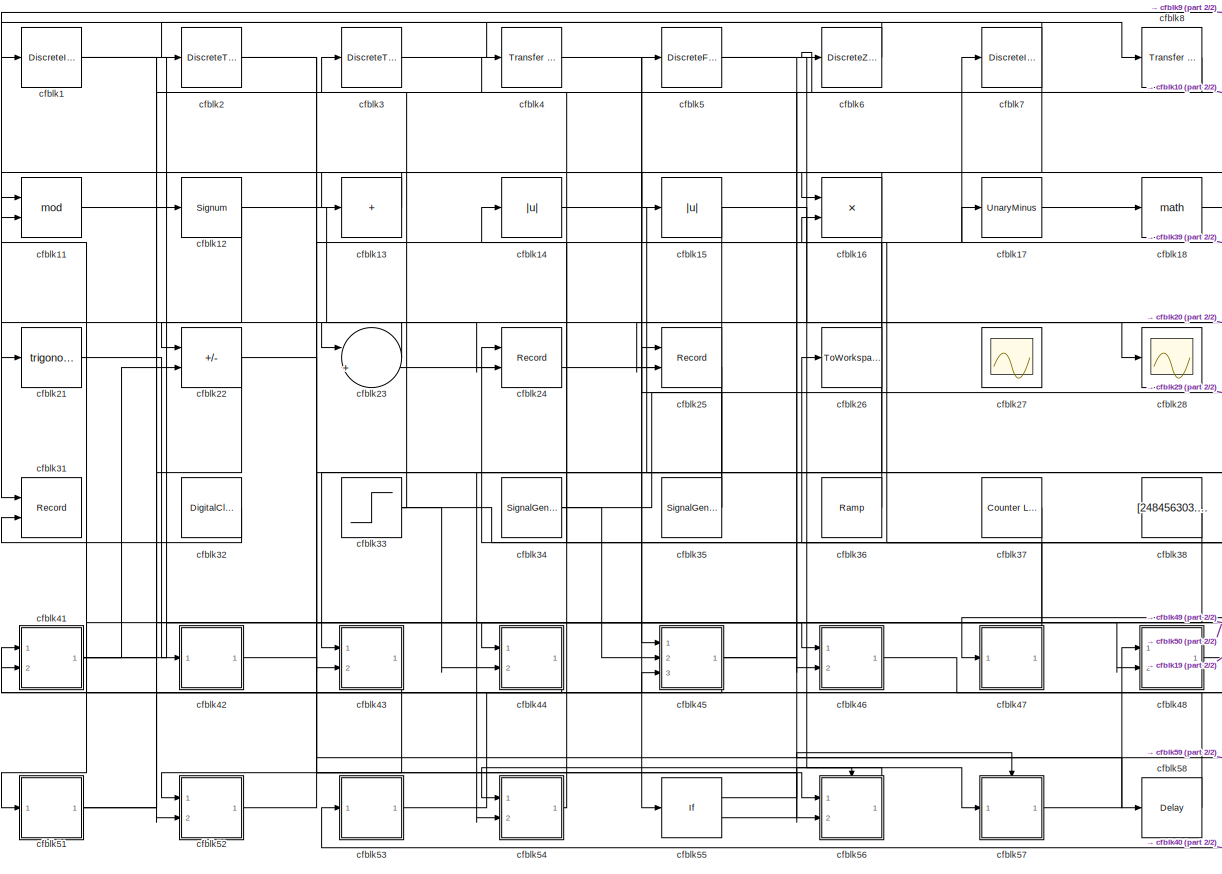
[diagram: root canvas - part 1/2, most of the canvas]
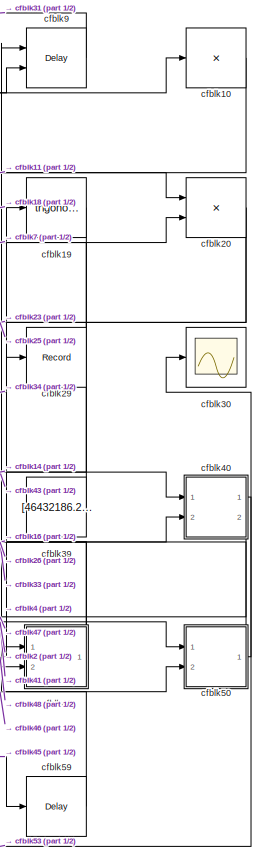
[diagram: root canvas - part 2/2, right side, full height]
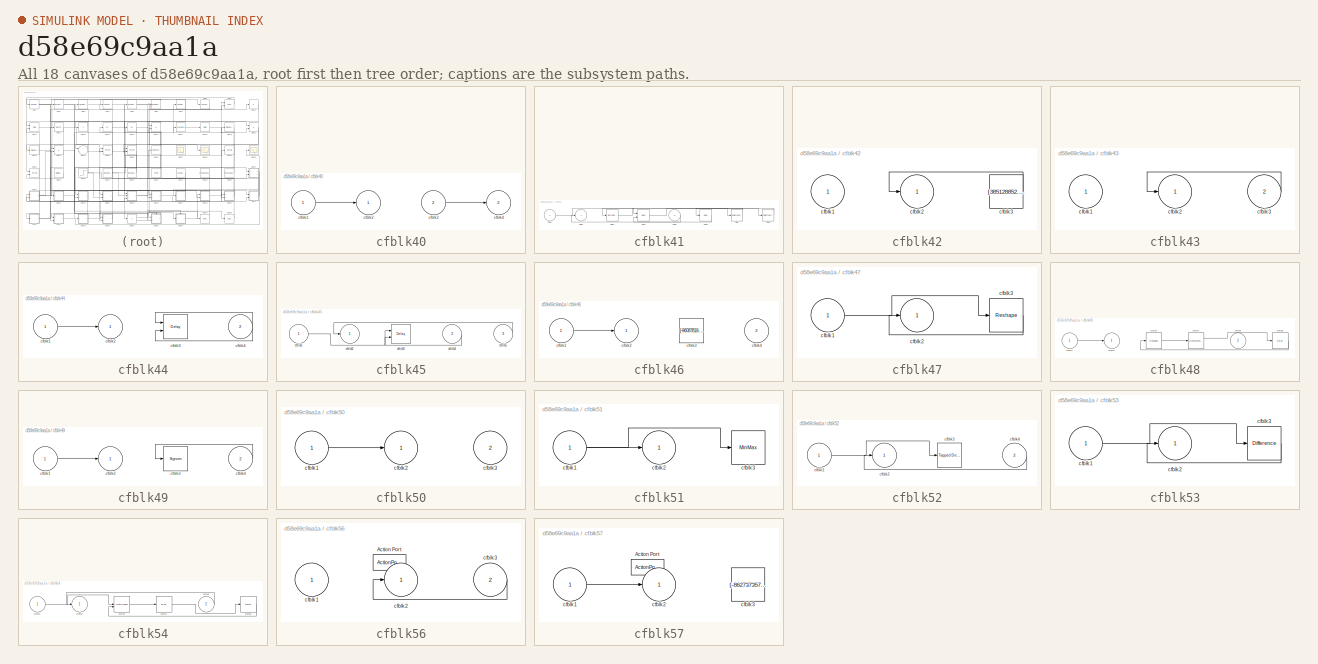
[diagram: thumbnail index - all 18 canvases of the model, root first then tree order]
MODEL slx_d58e69c9aa1a
KIND model
CONFIG AbsTol = auto
CONFIG EnableMultiTasking = off
CONFIG FixedStep = auto
CONFIG MaxStep = auto
CONFIG MinStep = auto
CONFIG RelTol = 1e-3
CONFIG SampleTimeConstraint = Unconstrained
CONFIG SolverName = VariableStepAuto
CONFIG StartTime = 0.0
CONFIG StopTime = 10.0
BLOCK [DiscreteIntegrator] cfblk1
  ICPrevOutput = DiscIntNeverNeededParam
  ICPrevScaledInput = DiscIntNeverNeededParam
  InitialConditionSetting = Auto
  Ports = [1, 1]
BLOCK [Product] cfblk10
  Inputs = *
  Ports = [1, 1]
BLOCK [Math] cfblk11
  Operator = mod
  Ports = [2, 1]
BLOCK [Signum] cfblk12
BLOCK [Sum] cfblk13
  IconShape = rectangular
  Inputs = +
  Ports = [1, 1]
BLOCK [Abs] cfblk14
  SaturateOnIntegerOverflow = off
BLOCK [Abs] cfblk15
  SaturateOnIntegerOverflow = off
BLOCK [Product] cfblk16
  Ports = [2, 1]
BLOCK [UnaryMinus] cfblk17
BLOCK [Math] cfblk18
  Ports = [1, 1]
BLOCK [Trigonometry] cfblk19
  Ports = [1, 1]
BLOCK [DiscreteTransferFcn] cfblk2
  InputPortMap = u0
  Ports = [1, 1]
  SampleTime = 1
BLOCK [Product] cfblk20
  Inputs = **
  Ports = [2, 1]
BLOCK [Trigonometry] cfblk21
  Ports = [1, 1]
BLOCK [Sum] cfblk22
  IconShape = rectangular
  Inputs = +-
  Ports = [2, 1]
BLOCK [Sum] cfblk23
  Inputs = |++
  Ports = [2, 1]
BLOCK [Record] cfblk24
  CompatibilityTag = XY
  FileSettingsInternal = {"entries":[{"content":{"excelSettings":{"content":{},"type":"Streamout.ExcelSettings"}},"type":"Streamout.FileSettingStorage","uuid":"17b5df4e-5c45-4ce3-adcc-850265834236"}],"packageUris":["http://schema.mathworks.com/mf0/streamout_blocks/R2020a"],"version":"1.0"}
  Layout = [1 1]
  Ports = [2]
  SignalsInternal = {"entries":[{"content":{"signals":[{"content":{"blockPath":["sampleModel221/cfblk24"],"channel":[],"dimensions":[1],"domain":"sampleModel221/cfblk24","lineColor":"#a2142f","plots":[1],"port":1,"sid":[""],"signalID":8606,"signalName":"cfblk47"},"type":"RecordBlkView.Signal","uuid":"ef50f66b-ef1e-4f28-aa92-86302d7e572f"},{"content":{"blockPath":["sampleModel221/cfblk24"],"channel":[],"dimensions":[1...<+383ch>
  VisualizationBindings = {"xyplotplugin":{"info":[{"series":[{"bindingParametersList":[{"parameter":"X-Axis","signalID":8606,"signalName":"cfblk47"},{"parameter":"Y-Axis","signalID":8610,"signalName":"cfblk12"}],"seriesID":43849}],"subplotID":1}]}}
BLOCK [Record] cfblk25
  CompatibilityTag = XY
  FileSettingsInternal = {"entries":[{"content":{"excelSettings":{"content":{},"type":"Streamout.ExcelSettings"}},"type":"Streamout.FileSettingStorage","uuid":"71e33b4c-764c-4138-a6ed-e1cbbb26cc10"}],"packageUris":["http://schema.mathworks.com/mf0/streamout_blocks/R2020a"],"version":"1.0"}
  Layout = [1 1]
  Ports = [2]
  SignalsInternal = {"entries":[{"content":{"signals":[{"content":{"blockPath":["sampleModel221/cfblk25"],"channel":[],"dimensions":[1],"domain":"sampleModel221/cfblk25","lineColor":"#a2142f","plots":[1],"port":1,"sid":[""],"signalID":8614,"signalName":"cfblk35"},"type":"RecordBlkView.Signal","uuid":"355ad24c-c70a-4d4e-91a4-ae64254e8cec"},{"content":{"blockPath":["sampleModel221/cfblk25"],"channel":[],"dimensions":[1...<+383ch>
  VisualizationBindings = {"xyplotplugin":{"info":[{"series":[{"bindingParametersList":[{"parameter":"X-Axis","signalID":8614,"signalName":"cfblk35"},{"parameter":"Y-Axis","signalID":8618,"signalName":"cfblk20"}],"seriesID":4177}],"subplotID":1}]}}
BLOCK [ToWorkspace] cfblk26
  FixptAsFi = on
  MaxDataPoints = inf
  Ports = [1]
  SampleTime = -1
  SaveFormat = Timeseries
  VariableName = rxaxodo
BLOCK [Scope] cfblk27
  Floating = on
  NumInputPorts = 1
  Ports = []
BLOCK [Scope] cfblk28
  Floating = off
  NumInputPorts = 1
  Ports = [1]
BLOCK [Record] cfblk29
  FileSettingsInternal = {"entries":[{"content":{"excelSettings":{"content":{},"type":"Streamout.ExcelSettings"}},"type":"Streamout.FileSettingStorage","uuid":"4d7a7f12-0234-42ac-a42e-fb5ca3b5d160"}],"packageUris":["http://schema.mathworks.com/mf0/streamout_blocks/R2020a"],"version":"1.0"}
  Ports = [1]
  SignalsInternal = {"entries":[{"content":{"signals":[{"content":{"blockPath":["sampleModel221/cfblk29"],"channel":[],"dimensions":[1],"domain":"sampleModel221/cfblk29","lineColor":"#a2142f","plots":[1],"port":1,"sid":[""],"signalID":8622,"signalName":"cfblk34"},"type":"RecordBlkView.Signal","uuid":"5069e872-126a-497e-beef-7b01c2a22045"}]},"type":"RecordBlkView.InputSignals","uuid":"ab89346d-cc94-4e93-86bf-061923d18...<+97ch>
  VisualizationBindings = {"sparklinesplugin":{"info":[{"bindingParametersList":[],"subplotID":1}]}}
BLOCK [DiscreteTransferFcn] cfblk3
  InputPortMap = u0
  Ports = [1, 1]
  SampleTime = 1
BLOCK [Scope] cfblk30
  Floating = off
  NumInputPorts = 1
  Ports = [1]
BLOCK [Record] cfblk31
  CompatibilityTag = XY
  FileSettingsInternal = {"entries":[{"content":{"excelSettings":{"content":{},"type":"Streamout.ExcelSettings"}},"type":"Streamout.FileSettingStorage","uuid":"7a72385a-f96f-4a12-929e-36e116d166a0"}],"packageUris":["http://schema.mathworks.com/mf0/streamout_blocks/R2020a"],"version":"1.0"}
  Layout = [1 1]
  Ports = [2]
  SignalsInternal = {"entries":[{"content":{"signals":[{"content":{"blockPath":["sampleModel221/cfblk31"],"channel":[],"dimensions":[1],"domain":"sampleModel221/cfblk31","lineColor":"#a2142f","plots":[1],"port":1,"sid":[""],"signalID":8626,"signalName":"cfblk9"},"type":"RecordBlkView.Signal","uuid":"a96c8959-c816-4740-a9c3-f827df62f38c"},{"content":{"blockPath":["sampleModel221/cfblk31"],"channel":[],"dimensions":[1]...<+382ch>
  VisualizationBindings = {"xyplotplugin":{"info":[{"series":[{"bindingParametersList":[{"parameter":"X-Axis","signalID":8626,"signalName":"cfblk9"},{"parameter":"Y-Axis","signalID":8630,"signalName":"cfblk32"}],"seriesID":59212}],"subplotID":1}]}}
BLOCK [DigitalClock] cfblk32
BLOCK [Step] cfblk33
  After = [586403943.823782]
  Before = [-908870727.442737]
  SampleTime = 0
  Time = [5.000000]
BLOCK [SignalGenerator] cfblk34
  Amplitude = [-209875020.457807]
  Ports = [0, 1]
  Units = rad/sec
BLOCK [SignalGenerator] cfblk35
  Amplitude = [816065188.618249]
  Ports = [0, 1]
BLOCK [Reference] cfblk36  REF=simulink/Sources/Ramp
  Ports = [0, 1]
  SourceBlock = simulink/Sources/Ramp
  SourceProductBaseCode = SL
  SourceType = Ramp
BLOCK [Reference] cfblk37  REF=simulink/Sources/Counter
Limited
  Ports = [0, 1]
  SourceBlock = simulink/Sources/Counter\nLimited
  SourceProductBaseCode = SL
  SourceType = Counter Limited
BLOCK [Constant] cfblk38
  SampleTime = 1
  Value = [248456303.268486]
BLOCK [Constant] cfblk39
  SampleTime = 1
  Value = [46432186.256579]
BLOCK [Reference] cfblk4  REF=simulink/Discrete/Transfer Fcn
Real Zero
  Ports = [1, 1]
  SourceBlock = simulink/Discrete/Transfer Fcn\nReal Zero
  SourceProductBaseCode = SL
  SourceType = Transfer Fcn Real Zero
BLOCK [SubSystem] cfblk40
  Ports = [2, 2]
  RequestExecContextInheritance = off
BLOCK [Inport] cfblk40/cfblk1
BLOCK [Outport] cfblk40/cfblk2
BLOCK [Inport] cfblk40/cfblk3
  Port = 2
BLOCK [Outport] cfblk40/cfblk4
  Port = 2
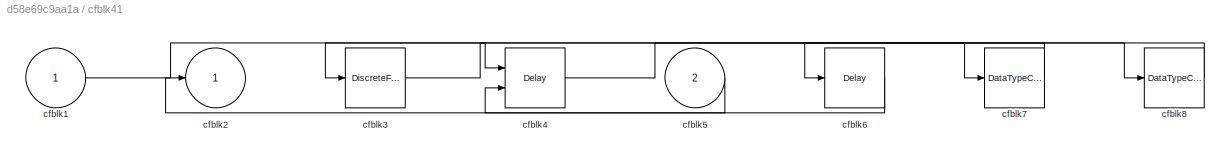
BLOCK [SubSystem] cfblk41
  Ports = [2, 1]
  RequestExecContextInheritance = off
BLOCK [Inport] cfblk41/cfblk1
BLOCK [Outport] cfblk41/cfblk2
BLOCK [DiscreteFilter] cfblk41/cfblk3
  InputPortMap = u0
  Ports = [1, 1]
  SampleTime = 1
BLOCK [Delay] cfblk41/cfblk4
  DelayLengthSource = Input port
  InputPortMap = u0,p1
  Ports = [2, 1]
  SampleTime = 1
BLOCK [Inport] cfblk41/cfblk5
  Port = 2
BLOCK [Delay] cfblk41/cfblk6
  InputPortMap = u0
  Ports = [1, 1]
  SampleTime = 1
BLOCK [DataTypeConversion] cfblk41/cfblk7
  RndMeth = Floor
  SaturateOnIntegerOverflow = off
BLOCK [DataTypeConversion] cfblk41/cfblk8
  RndMeth = Floor
  SaturateOnIntegerOverflow = off
BLOCK [SubSystem] cfblk42
  Ports = [1, 1]
  RequestExecContextInheritance = off
BLOCK [Inport] cfblk42/cfblk1
BLOCK [Outport] cfblk42/cfblk2
BLOCK [Constant] cfblk42/cfblk3
  SampleTime = 1
  Value = [385128852.901008]
BLOCK [SubSystem] cfblk43
  Ports = [2, 1]
  RequestExecContextInheritance = off
BLOCK [Inport] cfblk43/cfblk1
BLOCK [Outport] cfblk43/cfblk2
BLOCK [Inport] cfblk43/cfblk3
  Port = 2
BLOCK [SubSystem] cfblk44
  Ports = [2, 1]
  RequestExecContextInheritance = off
BLOCK [Inport] cfblk44/cfblk1
BLOCK [Outport] cfblk44/cfblk2
BLOCK [Delay] cfblk44/cfblk3
  DelayLengthSource = Input port
  InputPortMap = u0,p1
  Ports = [2, 1]
  SampleTime = 1
BLOCK [Inport] cfblk44/cfblk4
  Port = 2
BLOCK [SubSystem] cfblk45
  Ports = [3, 1]
  RequestExecContextInheritance = off
BLOCK [Inport] cfblk45/cfblk1
BLOCK [Outport] cfblk45/cfblk2
BLOCK [Delay] cfblk45/cfblk3
  InputPortMap = u0,e6
  Ports = [2, 1]
  SampleTime = 1
  ShowEnablePort = on
BLOCK [Inport] cfblk45/cfblk4
  Port = 2
BLOCK [Inport] cfblk45/cfblk5
  Port = 3
BLOCK [SubSystem] cfblk46
  Ports = [2, 1]
  RequestExecContextInheritance = off
BLOCK [Inport] cfblk46/cfblk1
BLOCK [Outport] cfblk46/cfblk2
BLOCK [Constant] cfblk46/cfblk3
  SampleTime = 1
  Value = [-96087819.668054]
BLOCK [Inport] cfblk46/cfblk4
  Port = 2
BLOCK [SubSystem] cfblk47
  Ports = [1, 1]
  RequestExecContextInheritance = off
BLOCK [Inport] cfblk47/cfblk1
BLOCK [Outport] cfblk47/cfblk2
BLOCK [Reshape] cfblk47/cfblk3
  Ports = [1, 1]
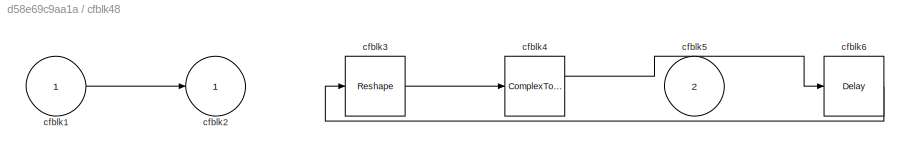
BLOCK [SubSystem] cfblk48
  Ports = [2, 1]
  RequestExecContextInheritance = off
BLOCK [Inport] cfblk48/cfblk1
BLOCK [Outport] cfblk48/cfblk2
BLOCK [Reshape] cfblk48/cfblk3
  Ports = [1, 1]
BLOCK [ComplexToMagnitudeAngle] cfblk48/cfblk4
  Ports = [1, 2]
BLOCK [Inport] cfblk48/cfblk5
  Port = 2
BLOCK [Delay] cfblk48/cfblk6
  InputPortMap = u0
  Ports = [1, 1]
  SampleTime = 1
BLOCK [SubSystem] cfblk49
  Ports = [2, 1]
  RequestExecContextInheritance = off
BLOCK [Inport] cfblk49/cfblk1
BLOCK [Outport] cfblk49/cfblk2
BLOCK [Signum] cfblk49/cfblk3
BLOCK [Inport] cfblk49/cfblk4
  Port = 2
BLOCK [DiscreteFilter] cfblk5
  InputPortMap = u0
  Ports = [1, 1]
  SampleTime = 1
BLOCK [SubSystem] cfblk50
  Ports = [2, 1]
  RequestExecContextInheritance = off
BLOCK [Inport] cfblk50/cfblk1
BLOCK [Outport] cfblk50/cfblk2
BLOCK [Inport] cfblk50/cfblk3
  Port = 2
BLOCK [SubSystem] cfblk51
  Ports = [1, 1]
  RequestExecContextInheritance = off
BLOCK [Inport] cfblk51/cfblk1
BLOCK [Outport] cfblk51/cfblk2
BLOCK [MinMax] cfblk51/cfblk3
  Function = max
  Ports = [1, 1]
BLOCK [SubSystem] cfblk52
  Ports = [2, 1]
  RequestExecContextInheritance = off
BLOCK [Inport] cfblk52/cfblk1
BLOCK [Outport] cfblk52/cfblk2
BLOCK [Reference] cfblk52/cfblk3  REF=simulink/Discrete/Tapped Delay
  Ports = [1, 1]
  SourceBlock = simulink/Discrete/Tapped Delay
  SourceProductBaseCode = SL
  SourceType = Tapped Delay Line
BLOCK [Inport] cfblk52/cfblk4
  Port = 2
BLOCK [SubSystem] cfblk53
  Ports = [1, 1]
  RequestExecContextInheritance = off
BLOCK [Inport] cfblk53/cfblk1
BLOCK [Outport] cfblk53/cfblk2
BLOCK [Reference] cfblk53/cfblk3  REF=simulink/Discrete/Difference
  Ports = [1, 1]
  SourceBlock = simulink/Discrete/Difference
  SourceProductBaseCode = SL
  SourceType = Difference
BLOCK [SubSystem] cfblk54
  Ports = [2, 1]
  RequestExecContextInheritance = off
BLOCK [Inport] cfblk54/cfblk1
BLOCK [Outport] cfblk54/cfblk2
BLOCK [DotProduct] cfblk54/cfblk3
  OutDataTypeStr = Inherit: Inherit via internal rule
BLOCK [Bias] cfblk54/cfblk4
  Bias = [482627084.438031]
  SaturateOnIntegerOverflow = off
BLOCK [Inport] cfblk54/cfblk5
  Port = 2
BLOCK [Delay] cfblk54/cfblk6
  InputPortMap = u0
  Ports = [1, 1]
  SampleTime = 1
BLOCK [If] cfblk55
  IfExpression = u1 >= 0
  Ports = [1, 2]
  SampleTime = 1
BLOCK [SubSystem] cfblk56
  Ports = [2, 1, 0, 0, 0, 0, 0, 1]
  RequestExecContextInheritance = off
  TreatAsAtomicUnit = on
BLOCK [ActionPort] cfblk56/Action Port
  ActionPortLabel = if(u1 >= 0)
BLOCK [Inport] cfblk56/cfblk1
BLOCK [Outport] cfblk56/cfblk2
BLOCK [Inport] cfblk56/cfblk3
  Port = 2
BLOCK [SubSystem] cfblk57
  Ports = [1, 1, 0, 0, 0, 0, 0, 1]
  RequestExecContextInheritance = off
  TreatAsAtomicUnit = on
BLOCK [ActionPort] cfblk57/Action Port
  ActionPortLabel = else
BLOCK [Inport] cfblk57/cfblk1
BLOCK [Outport] cfblk57/cfblk2
BLOCK [Constant] cfblk57/cfblk3
  SampleTime = 1
  Value = [-862737357.077880]
BLOCK [Delay] cfblk58
  InputPortMap = u0
  Ports = [1, 1]
  SampleTime = 1
BLOCK [Delay] cfblk59
  InputPortMap = u0
  Ports = [1, 1]
  SampleTime = 1
BLOCK [DiscreteZeroPole] cfblk6
  Gain = 1
  Poles = [0 0.5]
BLOCK [DiscreteIntegrator] cfblk7
  ICPrevOutput = DiscIntNeverNeededParam
  ICPrevScaledInput = DiscIntNeverNeededParam
  InitialConditionSetting = Auto
  Ports = [1, 1]
BLOCK [Reference] cfblk8  REF=simulink/Discrete/Transfer Fcn
Lead or Lag
  Ports = [1, 1]
  SourceBlock = simulink/Discrete/Transfer Fcn\nLead or Lag
  SourceProductBaseCode = SL
  SourceType = Lead or Lag Compensator
BLOCK [Delay] cfblk9
  DelayLengthSource = Input port
  InputPortMap = u0,p1
  Ports = [2, 1]
  SampleTime = 1
LINE cfblk10:1 -> cfblk16:1
LINE cfblk11:1 -> cfblk20:1
NET cfblk12:1 -> cfblk22:1, cfblk24:2
LINE cfblk13:1 -> cfblk11:1
LINE cfblk14:1 -> cfblk40:1
NET cfblk15:1 -> cfblk28:1, cfblk43:1
NET cfblk16:1 -> cfblk13:1, cfblk54:2
LINE cfblk17:1 -> cfblk18:1
LINE cfblk18:1 -> cfblk20:2
LINE cfblk19:1 -> cfblk43:2
NET cfblk1:1 -> cfblk15:1, cfblk46:1, cfblk46:2
NET cfblk20:1 -> cfblk23:1, cfblk25:2
LINE cfblk21:1 -> cfblk42:1
NET cfblk22:1 -> cfblk52:2, cfblk56:1
LINE cfblk23:1 -> cfblk21:1
NET cfblk2:1 -> cfblk49:2, cfblk56:2
LINE cfblk32:1 -> cfblk31:2
NET cfblk33:1 -> cfblk3:1, cfblk40:2, cfblk44:2
NET cfblk34:1 -> cfblk29:1, cfblk45:2
NET cfblk35:1 -> cfblk23:2, cfblk25:1
LINE cfblk36:1 -> cfblk5:1
LINE cfblk37:1 -> cfblk44:1
LINE cfblk38:1 -> cfblk51:1
LINE cfblk39:1 -> cfblk7:1
LINE cfblk3:1 -> cfblk8:1
LINE cfblk40/cfblk1:1 -> cfblk40/cfblk2:1
LINE cfblk40/cfblk3:1 -> cfblk40/cfblk4:1
LINE cfblk40:1 -> cfblk53:1
LINE cfblk40:2 -> cfblk47:1
LINE cfblk41/cfblk1:1 -> cfblk41/cfblk4:1
LINE cfblk41/cfblk3:1 -> cfblk41/cfblk7:1
LINE cfblk41/cfblk4:1 -> cfblk41/cfblk8:1
LINE cfblk41/cfblk5:1 -> cfblk41/cfblk2:1
LINE cfblk41/cfblk6:1 -> cfblk41/cfblk4:2
LINE cfblk41/cfblk7:1 -> cfblk41/cfblk6:1
LINE cfblk41/cfblk8:1 -> cfblk41/cfblk3:1
NET cfblk41:1 -> cfblk10:1, cfblk22:2, cfblk50:1
LINE cfblk42/cfblk3:1 -> cfblk42/cfblk2:1
LINE cfblk42:1 -> cfblk58:1
LINE cfblk43/cfblk3:1 -> cfblk43/cfblk2:1
LINE cfblk43:1 -> cfblk52:1
LINE cfblk44/cfblk1:1 -> cfblk44/cfblk2:1
NET cfblk44/cfblk4:1 -> cfblk44/cfblk3:1, cfblk44/cfblk3:2
LINE cfblk44:1 -> cfblk41:1
LINE cfblk45/cfblk1:1 -> cfblk45/cfblk3:1
LINE cfblk45/cfblk4:1 -> cfblk45/cfblk3:2
LINE cfblk45/cfblk5:1 -> cfblk45/cfblk2:1
NET cfblk45:1 -> cfblk41:2, cfblk59:1, cfblk9:2
LINE cfblk46/cfblk1:1 -> cfblk46/cfblk2:1
LINE cfblk46:1 -> cfblk50:2
LINE cfblk47/cfblk1:1 -> cfblk47/cfblk3:1
LINE cfblk47/cfblk3:1 -> cfblk47/cfblk2:1
LINE cfblk47:1 -> cfblk24:1
LINE cfblk48/cfblk1:1 -> cfblk48/cfblk2:1
LINE cfblk48/cfblk3:1 -> cfblk48/cfblk4:1
LINE cfblk48/cfblk4:1 -> cfblk48/cfblk6:1
LINE cfblk48/cfblk6:1 -> cfblk48/cfblk3:1
LINE cfblk48:1 -> cfblk19:1
LINE cfblk49/cfblk1:1 -> cfblk49/cfblk2:1
LINE cfblk49/cfblk4:1 -> cfblk49/cfblk3:1
NET cfblk49:1 -> cfblk26:1, cfblk4:1
LINE cfblk4:1 -> cfblk45:1
LINE cfblk50/cfblk1:1 -> cfblk50/cfblk2:1
NET cfblk50:1 -> cfblk16:2, cfblk30:1
NET cfblk51/cfblk1:1 -> cfblk51/cfblk2:1, cfblk51/cfblk3:1
NET cfblk51:1 -> cfblk12:1, cfblk45:3
LINE cfblk52/cfblk1:1 -> cfblk52/cfblk3:1
LINE cfblk52/cfblk4:1 -> cfblk52/cfblk2:1
LINE cfblk52:1 -> cfblk17:1
LINE cfblk53/cfblk1:1 -> cfblk53/cfblk3:1
LINE cfblk53/cfblk3:1 -> cfblk53/cfblk2:1
LINE cfblk53:1 -> cfblk9:1
LINE cfblk54/cfblk1:1 -> cfblk54/cfblk3:1
LINE cfblk54/cfblk3:1 -> cfblk54/cfblk4:1
LINE cfblk54/cfblk4:1 -> cfblk54/cfblk6:1
LINE cfblk54/cfblk5:1 -> cfblk54/cfblk2:1
LINE cfblk54/cfblk6:1 -> cfblk54/cfblk3:2
LINE cfblk54:1 -> cfblk14:1
LINE cfblk55:1 -> cfblk56:ifaction
LINE cfblk55:2 -> cfblk57:ifaction
LINE cfblk56/cfblk3:1 -> cfblk56/cfblk2:1
LINE cfblk56:1 -> cfblk54:1
LINE cfblk57/cfblk1:1 -> cfblk57/cfblk2:1
LINE cfblk57:1 -> cfblk48:1
LINE cfblk58:1 -> cfblk11:2
LINE cfblk59:1 -> cfblk49:1
NET cfblk5:1 -> cfblk48:2, cfblk57:1
LINE cfblk6:1 -> cfblk1:1
NET cfblk7:1 -> cfblk2:1, cfblk55:1
LINE cfblk8:1 -> cfblk6:1
LINE cfblk9:1 -> cfblk31:1
note: NET lines group one-source signal fan-out (src -> all destinations, sorted); 1:1 wires keep LINE
